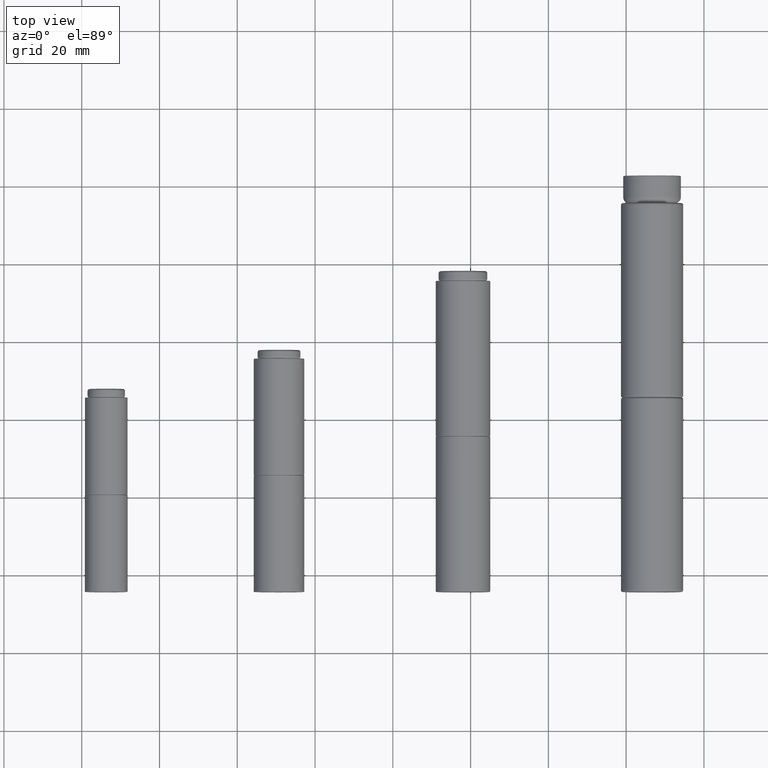
[diagram: clean part render]
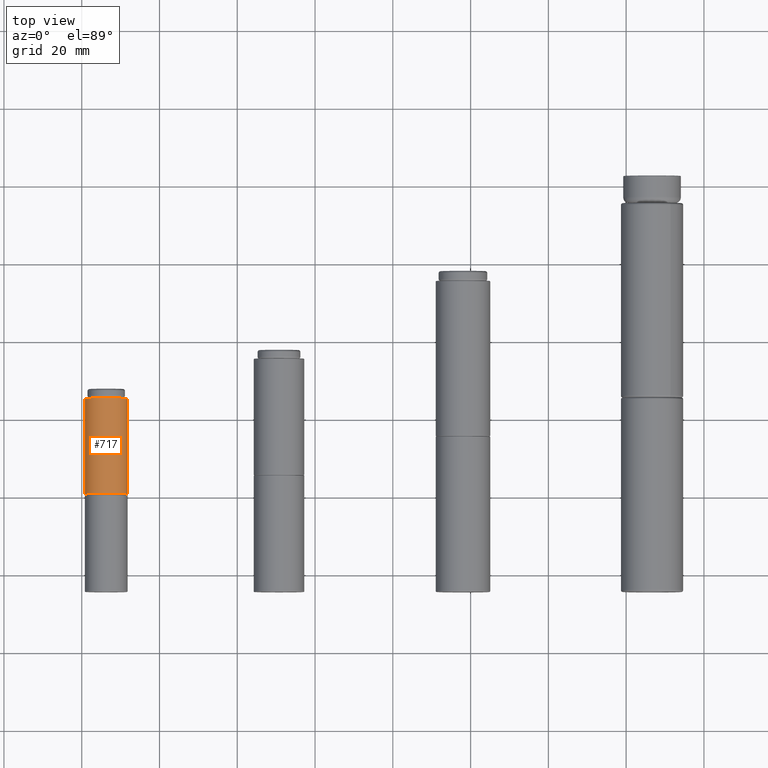
[diagram: same view with one face highlighted and labeled with its STEP entity id]
A machine part, top view. The second image highlights one B-rep face of the part: STEP entity #717.
In plain terms, the highlighted cylindrical surface (bore or boss wall) has radius 5.5 mm, axis along (0, 1, -0).
Its self-contained STEP definition (entity closure, byte-faithful):
#132=CYLINDRICAL_SURFACE('',#797,5.5);
#153=FACE_BOUND('',#280,.T.);
#209=FACE_OUTER_BOUND('',#279,.T.);
#279=EDGE_LOOP('',(#579));
#280=EDGE_LOOP('',(#580));
#393=CIRCLE('',#796,5.5);
#394=CIRCLE('',#798,5.5);
#453=VERTEX_POINT('',#1261);
#454=VERTEX_POINT('',#1264);
#513=EDGE_CURVE('',#453,#453,#393,.T.);
#514=EDGE_CURVE('',#454,#454,#394,.T.);
#579=ORIENTED_EDGE('',*,*,#514,.F.);
#580=ORIENTED_EDGE('',*,*,#513,.F.);
#717=ADVANCED_FACE('',(#209,#153),#132,.T.);
#796=AXIS2_PLACEMENT_3D('',#1262,#962,#963);
#797=AXIS2_PLACEMENT_3D('',#1263,#964,#965);
#798=AXIS2_PLACEMENT_3D('',#1265,#966,#967);
#962=DIRECTION('center_axis',(0.,0.,-1.));
#963=DIRECTION('ref_axis',(-1.,0.,0.));
#964=DIRECTION('center_axis',(0.,0.,1.));
#965=DIRECTION('ref_axis',(-1.,0.,0.));
#966=DIRECTION('center_axis',(0.,0.,1.));
#967=DIRECTION('ref_axis',(-1.,0.,0.));
#1261=CARTESIAN_POINT('',(5.5,-6.73555739531044E-16,0.2));
#1262=CARTESIAN_POINT('Origin',(0.,0.,0.2));
#1263=CARTESIAN_POINT('Origin',(0.,0.,0.));
#1264=CARTESIAN_POINT('',(5.5,6.73555739531044E-16,24.8));
#1265=CARTESIAN_POINT('Origin',(0.,0.,24.8));